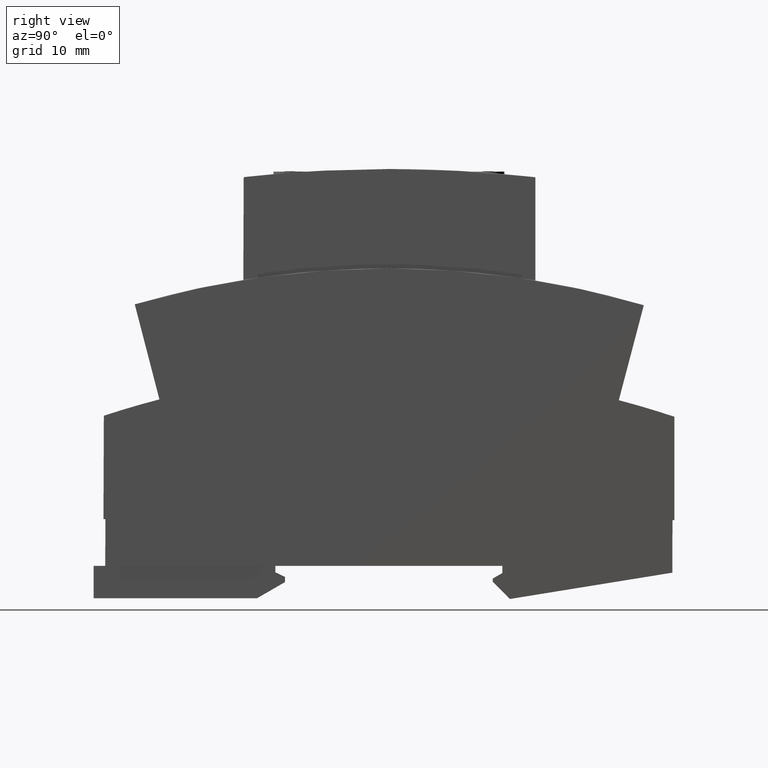
[diagram: clean part render]
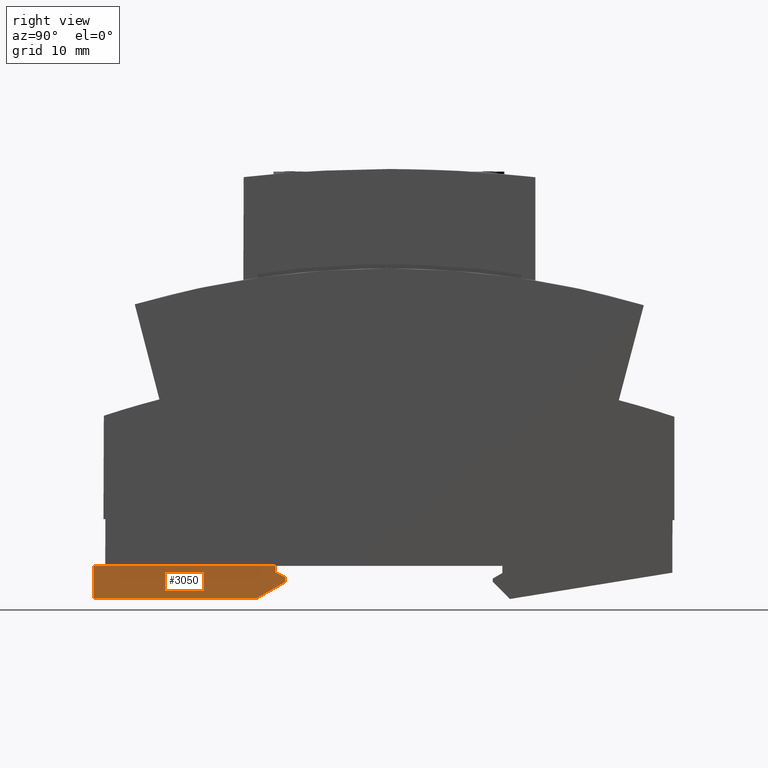
[diagram: same view with one face highlighted and labeled with its STEP entity id]
A machine part, right view. The second image highlights one B-rep face of the part: STEP entity #3050.
In plain terms, the highlighted planar face has unit normal (1, 0, 0).
Its self-contained STEP definition (entity closure, byte-faithful):
#2340=CARTESIAN_POINT('',(-48.7,-2.50000000000002,17.2));
#2350=DIRECTION('',(0.,0.,1.));
#2360=DIRECTION('',(1.,0.,0.));
#2370=AXIS2_PLACEMENT_3D('',#2340,#2350,#2360);
#2380=PLANE('',#2370);
#2390=CARTESIAN_POINT('',(-35.,23.9099318984209,17.2));
#2400=DIRECTION('',(-4.41495656790506E-16,1.,0.));
#2410=VECTOR('',#2400,1.);
#2420=LINE('',#2390,#2410);
#2430=CARTESIAN_POINT('',(-35.,-1.00000000000002,17.2));
#2440=VERTEX_POINT('',#2430);
#2450=CARTESIAN_POINT('',(-35.,-1.4210854715202E-14,17.2));
#2460=VERTEX_POINT('',#2450);
#2470=EDGE_CURVE('',#2440,#2460,#2420,.T.);
#2480=ORIENTED_EDGE('',*,*,#2470,.T.);
#2490=CARTESIAN_POINT('',(-68.4771667671577,14.6226778246735,17.2));
#2500=DIRECTION('',(-0.906183139995266,0.422885465331123,0.));
#2510=VECTOR('',#2500,1.);
#2520=LINE('',#2490,#2510);
#2530=CARTESIAN_POINT('',(-33.5,-1.70000000000002,17.2));
#2540=VERTEX_POINT('',#2530);
#2550=EDGE_CURVE('',#2540,#2440,#2520,.T.);
#2560=ORIENTED_EDGE('',*,*,#2550,.T.);
#2570=CARTESIAN_POINT('',(-33.5,8.00000000000001,17.2));
#2580=DIRECTION('',(-4.41495656790506E-16,1.,0.));
#2590=VECTOR('',#2580,1.);
#2600=LINE('',#2570,#2590);
#2610=CARTESIAN_POINT('',(-33.5,-2.50000000000002,17.2));
#2620=VERTEX_POINT('',#2610);
#2630=EDGE_CURVE('',#2620,#2540,#2600,.T.);
#2640=ORIENTED_EDGE('',*,*,#2630,.T.);
#2650=CARTESIAN_POINT('',(-68.4771667671577,-22.6940766485087,17.2));
#2660=DIRECTION('',(0.866025403784441,0.499999999999995,0.));
#2670=VECTOR('',#2660,1.);
#2680=LINE('',#2650,#2670);
#2690=CARTESIAN_POINT('',(-37.8301270189222,-5.00000000000002,17.2));
#2700=VERTEX_POINT('',#2690);
#2710=EDGE_CURVE('',#2700,#2620,#2680,.T.);
#2720=ORIENTED_EDGE('',*,*,#2710,.T.);
#2730=CARTESIAN_POINT('',(-68.4771667671577,-5.00000000000003,17.2));
#2740=DIRECTION('',(1.,4.41495656790506E-16,0.));
#2750=VECTOR('',#2740,1.);
#2760=LINE('',#2730,#2750);
#2770=CARTESIAN_POINT('',(-63.,-5.00000000000003,17.2));
#2780=VERTEX_POINT('',#2770);
#2790=EDGE_CURVE('',#2780,#2700,#2760,.T.);
#2800=ORIENTED_EDGE('',*,*,#2790,.T.);
#2810=CARTESIAN_POINT('',(-63.,8.00000000000001,17.2));
#2820=DIRECTION('',(4.41495656790506E-16,-1.,0.));
#2830=VECTOR('',#2820,1.);
#2840=LINE('',#2810,#2830);
#2850=CARTESIAN_POINT('',(-63.,-3.19744231092045E-14,17.2));
#2860=VERTEX_POINT('',#2850);
#2870=EDGE_CURVE('',#2860,#2780,#2840,.T.);
#2880=ORIENTED_EDGE('',*,*,#2870,.T.);
#2890=CARTESIAN_POINT('',(-17.5000000000001,-1.06581410364015E-14,17.2))
;
#2900=DIRECTION('',(-1.,-4.41495656790506E-16,0.));
#2910=VECTOR('',#2900,1.);
#2920=LINE('',#2890,#2910);
#2930=CARTESIAN_POINT('',(-61.2078139136722,-2.48689957516035E-14,17.2))
;
#2940=VERTEX_POINT('',#2930);
#2950=EDGE_CURVE('',#2940,#2860,#2920,.T.);
#2960=ORIENTED_EDGE('',*,*,#2950,.T.);
#2970=CARTESIAN_POINT('',(-4.49999999999999,-2.1316282072803E-14,17.2));
#2980=DIRECTION('',(1.,-1.20370621524202E-35,0.));
#2990=VECTOR('',#2980,1.);
#3000=LINE('',#2970,#2990);
#3010=EDGE_CURVE('',#2940,#2460,#3000,.T.);
#3020=ORIENTED_EDGE('',*,*,#3010,.F.);
#3030=EDGE_LOOP('',(#3020,#2960,#2880,#2800,#2720,#2640,#2560,#2480));
#3040=FACE_OUTER_BOUND('',#3030,.T.);
#3050=ADVANCED_FACE('',(#3040),#2380,.T.);